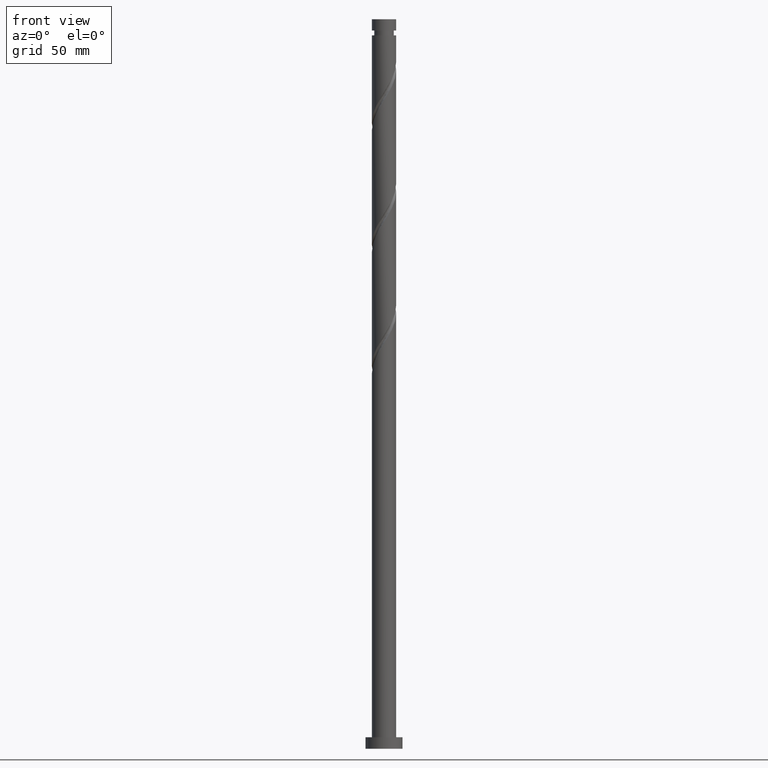
[diagram: clean part render]
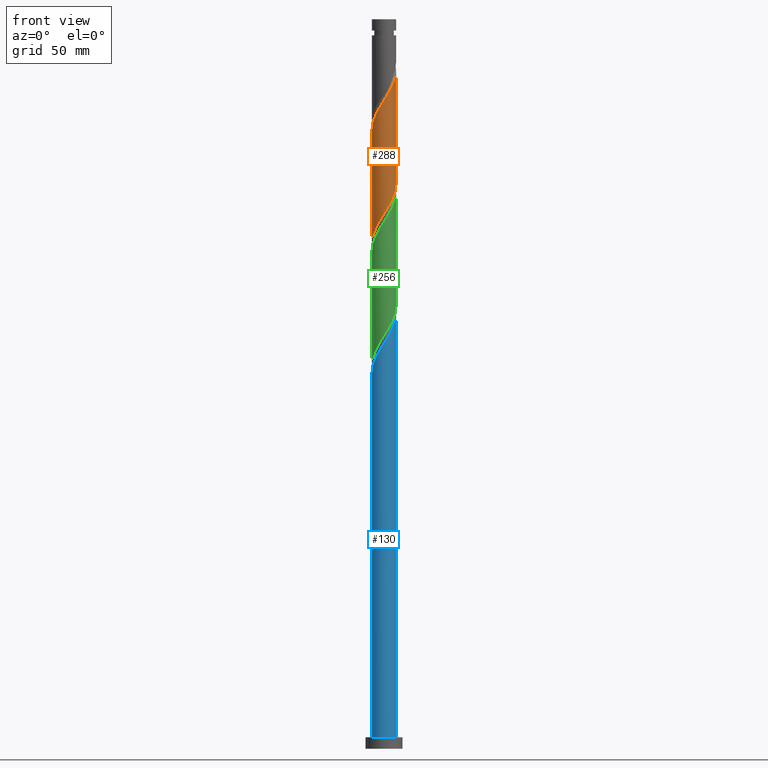
[diagram: same view with three faces highlighted in distinct colors, each labeled with its STEP entity id]
A machine part, front view with three faces highlighted in distinct colors.
Their STEP definitions:

[orange] entity #288 — the highlighted cylindrical surface (edge-blend (fillet) strip) has radius 5.25 mm, axis along (-0, -0, -1).
#23 = DIRECTION ( 'NONE',  ( -0.000000000000000000, -0.000000000000000000, -1.000000000000000000 ) ) ;
#29 = EDGE_CURVE ( 'NONE', #1699, #625, #1405, .T. ) ;
#64 = CARTESIAN_POINT ( 'NONE',  ( -5.250000000000007994, 6.731523858208281792E-15, 266.9592842390801479 ) ) ;
#93 = CARTESIAN_POINT ( 'NONE',  ( 0.1263271292644582433, -5.248479918644234132, 231.1338013169862791 ) ) ;
#104 = CARTESIAN_POINT ( 'NONE',  ( 2.917669601085083109, -4.404499439377113745, 235.8213013169862222 ) ) ;
#112 = CARTESIAN_POINT ( 'NONE',  ( -5.088779138424103898, -1.291056497733397812, 219.8838013169861938 ) ) ;
#122 = CARTESIAN_POINT ( 'NONE',  ( 5.250000000000007994, -8.955464112915676280E-17, 293.2092842390802048 ) ) ;
#146 = CARTESIAN_POINT ( 'NONE',  ( -0.7176887917048032639, -5.234246269600876467, 278.9463013169862506 ) ) ;
#165 = VERTEX_POINT ( 'NONE', #1917 ) ;
#223 = CARTESIAN_POINT ( 'NONE',  ( -5.248479918644234132, -0.1263271292644584931, 218.0088013169862222 ) ) ;
#247 = CARTESIAN_POINT ( 'NONE',  ( 4.539770163101061407, -2.702387477544005989, 239.5713013169863075 ) ) ;
#254 =( BOUNDED_CURVE ( )  B_SPLINE_CURVE ( 2, ( #1151, #724, #1174, #1031, #1605, #1288, #994, #889, #1765, #1470, #549, #1022, #1135, #146, #897, #1613, #870, #862, #742, #1330, #1924, #1735, #1624, #404, #1779, #1144, #734, #1004, #1486, #300, #122 ),
 .UNSPECIFIED., .F., .T. ) 
 B_SPLINE_CURVE_WITH_KNOTS ( ( 3, 2, 2, 2, 2, 2, 2, 2, 2, 2, 2, 2, 2, 2, 2, 3 ),
 ( 0.5545303401299220836, 0.5625000000000000000, 0.5714285714285713969, 0.5803571428571427937, 0.5892857142857143016, 0.5982142857142856984, 0.6071428571428572063, 0.6160714285714286031, 0.6250000000000000000, 0.6339285714285713969, 0.6428571428571427937, 0.6517857142857143016, 0.6607142857142856984, 0.6696428571428572063, 0.6785714285714286031, 0.6795303401299219725 ),
 .UNSPECIFIED. ) 
 CURVE ( )  GEOMETRIC_REPRESENTATION_ITEM ( )  RATIONAL_B_SPLINE_CURVE ( ( 0.9079949616362053000, 0.9039886423360684597, 0.9090909090909352619, 0.9033747362666101344, 0.9090909090909352619, 0.9033747362666101344, 0.9090909090909352619, 0.9033747362666101344, 0.9090909090909352619, 0.9033747362666101344, 0.9090909090909352619, 0.9033747362666101344, 0.9090909090909352619, 0.9033747362666101344, 0.9090909090909352619, 0.9033747362666101344, 0.9090909090909352619, 0.9033747362666101344, 0.9090909090909352619, 0.9033747362666101344, 0.9090909090909352619, 0.9033747362666101344, 0.9090909090909352619, 0.9033747362666101344, 0.9090909090909352619, 0.9033747362666101344, 0.9090909090909352619, 0.9033747362666101344, 0.9090909090909352619, 0.9084770030214770475, 0.9079949616362054110 ) ) 
 REPRESENTATION_ITEM ( '' )  );
#288 = ADVANCED_FACE ( 'NONE', ( #475 ), #1374, .T. ) ;
#294 = VECTOR ( 'NONE', #827, 1000.000000000000000 ) ;
#300 = CARTESIAN_POINT ( 'NONE',  ( 5.250000000000008882, -0.06317271012355664406, 293.1089215508551433 ) ) ;
#331 = LINE ( 'NONE', #786, #872 ) ;
#342 = EDGE_LOOP ( 'NONE', ( #1256, #1812, #376, #1505 ) ) ;
#346 = EDGE_CURVE ( 'NONE', #787, #165, #331, .T. ) ;
#359 = CARTESIAN_POINT ( 'NONE',  ( -3.644826878028541550, -3.824610861482511837, 224.5713013169862791 ) ) ;
#366 = CARTESIAN_POINT ( 'NONE',  ( -5.249999999999998224, 2.850822742611512929E-15, 217.8083183948922965 ) ) ;
#376 = ORIENTED_EDGE ( 'NONE', *, *, #346, .T. ) ;
#383 =( BOUNDED_CURVE ( )  B_SPLINE_CURVE ( 2, ( #1547, #1428, #1715, #1421, #504, #247, #1846, #842, #1437, #104, #826, #821, #666, #1687, #93, #1562, #696, #1278, #1880, #1091, #1126, #359, #392, #1697, #1271, #1554, #112, #982, #223, #951, #366 ),
 .UNSPECIFIED., .F., .T. ) 
 B_SPLINE_CURVE_WITH_KNOTS ( ( 3, 2, 2, 2, 2, 2, 2, 2, 2, 2, 2, 2, 2, 2, 2, 3 ),
 ( 0.5545303401299221946, 0.5625000000000000000, 0.5714285714285713969, 0.5803571428571429047, 0.5892857142857143016, 0.5982142857142856984, 0.6071428571428570953, 0.6160714285714286031, 0.6250000000000000000, 0.6339285714285713969, 0.6428571428571429047, 0.6517857142857143016, 0.6607142857142856984, 0.6696428571428570953, 0.6785714285714286031, 0.6795303401299220836 ),
 .UNSPECIFIED. ) 
 CURVE ( )  GEOMETRIC_REPRESENTATION_ITEM ( )  RATIONAL_B_SPLINE_CURVE ( ( 0.9079949616361979725, 0.9039886423360613543, 0.9090909090909280454, 0.9033747362666029179, 0.9090909090909280454, 0.9033747362666029179, 0.9090909090909280454, 0.9033747362666029179, 0.9090909090909280454, 0.9033747362666029179, 0.9090909090909280454, 0.9033747362666029179, 0.9090909090909280454, 0.9033747362666029179, 0.9090909090909280454, 0.9033747362666029179, 0.9090909090909280454, 0.9033747362666029179, 0.9090909090909280454, 0.9033747362666029179, 0.9090909090909280454, 0.9033747362666029179, 0.9090909090909280454, 0.9033747362666029179, 0.9090909090909280454, 0.9033747362666029179, 0.9090909090909280454, 0.9033747362666029179, 0.9090909090909280454, 0.9084770030214698311, 0.9079949616361981946 ) ) 
 REPRESENTATION_ITEM ( '' )  );
#392 = CARTESIAN_POINT ( 'NONE',  ( -4.024663158702826316, -3.371140231283797029, 223.6338013169862222 ) ) ;
#404 = CARTESIAN_POINT ( 'NONE',  ( 4.404499439377119963, -2.917669601085090214, 288.3213013169862506 ) ) ;
#475 = FACE_OUTER_BOUND ( 'NONE', #342, .T. ) ;
#485 = EDGE_CURVE ( 'NONE', #625, #165, #383, .T. ) ;
#504 = CARTESIAN_POINT ( 'NONE',  ( 4.783528297706726384, -2.163413281146016054, 240.5088013169862222 ) ) ;
#549 = CARTESIAN_POINT ( 'NONE',  ( -2.391046902423545895, -4.673905723312233640, 276.1338013169863643 ) ) ;
#625 = VERTEX_POINT ( 'NONE', #1476 ) ;
#666 = CARTESIAN_POINT ( 'NONE',  ( 1.291056497733397368, -5.088779138424103898, 233.0088013169862222 ) ) ;
#685 = CARTESIAN_POINT ( 'NONE',  ( 5.250000000000000000, 6.429395695523604153E-16, 315.0000000000000000 ) ) ;
#696 = CARTESIAN_POINT ( 'NONE',  ( -1.044736808961954200, -5.144999999999996909, 229.2588013169862506 ) ) ;
#724 = CARTESIAN_POINT ( 'NONE',  ( -5.250000000000007994, -0.5276448530110887658, 267.7975553180438055 ) ) ;
#734 = CARTESIAN_POINT ( 'NONE',  ( 5.088779138424111892, -1.291056497733402475, 291.1338013169862506 ) ) ;
#742 = CARTESIAN_POINT ( 'NONE',  ( 2.163413281146017830, -4.783528297706736154, 283.6338013169861938 ) ) ;
#759 = EDGE_CURVE ( 'NONE', #787, #1699, #254, .T. ) ;
#786 = CARTESIAN_POINT ( 'NONE',  ( -5.250000000000000000, 0.000000000000000000, 315.0000000000000000 ) ) ;
#787 = VERTEX_POINT ( 'NONE', #64 ) ;
#821 = CARTESIAN_POINT ( 'NONE',  ( 1.864424203761996468, -4.943312007247341100, 233.9463013169863075 ) ) ;
#826 = CARTESIAN_POINT ( 'NONE',  ( 2.391046902423538345, -4.673905723312225646, 234.8838013169861938 ) ) ;
#827 = DIRECTION ( 'NONE',  ( -0.000000000000000000, -0.000000000000000000, -1.000000000000000000 ) ) ;
#842 = CARTESIAN_POINT ( 'NONE',  ( 3.824610861482511837, -3.644826878028541550, 237.6963013169862791 ) ) ;
#862 = CARTESIAN_POINT ( 'NONE',  ( 1.624439084748026119, -5.027286432312405573, 282.6963013169862506 ) ) ;
#870 = CARTESIAN_POINT ( 'NONE',  ( 1.044736808961953978, -5.145000000000008455, 281.7588013169861370 ) ) ;
#872 = VECTOR ( 'NONE', #23, 1000.000000000000000 ) ;
#889 = CARTESIAN_POINT ( 'NONE',  ( -3.824610861482520274, -3.644826878028545991, 273.3213013169862506 ) ) ;
#897 = CARTESIAN_POINT ( 'NONE',  ( -0.1263271292644604360, -5.248479918644243902, 279.8838013169862506 ) ) ;
#951 = CARTESIAN_POINT ( 'NONE',  ( -5.249999999999998224, -0.06317271012354704063, 217.9086810831173580 ) ) ;
#982 = CARTESIAN_POINT ( 'NONE',  ( -5.234246269600866697, -0.7176887917048000443, 218.9463013169863075 ) ) ;
#994 = CARTESIAN_POINT ( 'NONE',  ( -4.182190512291795059, -3.173607177786278655, 272.3838013169863075 ) ) ;
#1004 = CARTESIAN_POINT ( 'NONE',  ( 5.234246269600876467, -0.7176887917048038190, 292.0713013169861938 ) ) ;
#1022 = CARTESIAN_POINT ( 'NONE',  ( -1.864424203762001131, -4.943312007247349982, 277.0713013169863075 ) ) ;
#1031 = CARTESIAN_POINT ( 'NONE',  ( -5.027286432312403797, -1.624439084748026341, 269.5713013169862506 ) ) ;
#1091 = CARTESIAN_POINT ( 'NONE',  ( -2.702387477544005989, -4.539770163101061407, 226.4463013169862506 ) ) ;
#1126 = CARTESIAN_POINT ( 'NONE',  ( -3.173607177786274214, -4.182190512291786177, 225.5088013169862791 ) ) ;
#1135 = CARTESIAN_POINT ( 'NONE',  ( -1.291056497733402475, -5.088779138424111892, 278.0088013169862506 ) ) ;
#1144 = CARTESIAN_POINT ( 'NONE',  ( 4.943312007247349982, -1.864424203762001131, 290.1963013169862506 ) ) ;
#1151 = CARTESIAN_POINT ( 'NONE',  ( -5.250000000000007994, 6.731523858208281792E-15, 266.9592842390801479 ) ) ;
#1174 = CARTESIAN_POINT ( 'NONE',  ( -5.145000000000008455, -1.044736808961954422, 268.6338013169863075 ) ) ;
#1256 = ORIENTED_EDGE ( 'NONE', *, *, #29, .F. ) ;
#1271 = CARTESIAN_POINT ( 'NONE',  ( -4.673905723312225646, -2.391046902423538789, 221.7588013169862791 ) ) ;
#1278 = CARTESIAN_POINT ( 'NONE',  ( -1.624439084748025675, -5.027286432312394915, 228.3213013169862791 ) ) ;
#1288 = CARTESIAN_POINT ( 'NONE',  ( -4.539770163101068512, -2.702387477544009986, 271.4463013169861938 ) ) ;
#1295 = CARTESIAN_POINT ( 'NONE',  ( 5.250000000000007994, -8.955464112915676280E-17, 293.2092842390802048 ) ) ;
#1330 = CARTESIAN_POINT ( 'NONE',  ( 2.702387477544009542, -4.539770163101068512, 284.5713013169862506 ) ) ;
#1374 = CYLINDRICAL_SURFACE ( 'NONE', #1700, 5.250000000000000000 ) ;
#1405 = LINE ( 'NONE', #685, #294 ) ;
#1421 = CARTESIAN_POINT ( 'NONE',  ( 5.027286432312394915, -1.624439084748025897, 241.4463013169862506 ) ) ;
#1428 = CARTESIAN_POINT ( 'NONE',  ( 5.249999999999996447, -0.5276448530110972035, 243.2200473159286389 ) ) ;
#1437 = CARTESIAN_POINT ( 'NONE',  ( 3.371140231283796584, -4.024663158702826316, 236.7588013169862222 ) ) ;
#1470 = CARTESIAN_POINT ( 'NONE',  ( -2.917669601085089326, -4.404499439377119963, 275.1963013169862506 ) ) ;
#1476 = CARTESIAN_POINT ( 'NONE',  ( 5.249999999999997335, -3.320984608539589435E-15, 244.0583183948922681 ) ) ;
#1486 = CARTESIAN_POINT ( 'NONE',  ( 5.248479918644243902, -0.1263271292644609078, 293.0088013169863075 ) ) ;
#1505 = ORIENTED_EDGE ( 'NONE', *, *, #485, .F. ) ;
#1539 = CARTESIAN_POINT ( 'NONE',  ( 0.000000000000000000, 0.000000000000000000, 315.0000000000000000 ) ) ;
#1547 = CARTESIAN_POINT ( 'NONE',  ( 5.249999999999997335, -3.320984608539589435E-15, 244.0583183948922681 ) ) ;
#1554 = CARTESIAN_POINT ( 'NONE',  ( -4.943312007247341100, -1.864424203761996468, 220.8213013169862791 ) ) ;
#1562 = CARTESIAN_POINT ( 'NONE',  ( -0.4650345331758833356, -5.262713567687602456, 230.1963013169862222 ) ) ;
#1605 = CARTESIAN_POINT ( 'NONE',  ( -4.783528297706736154, -2.163413281146018274, 270.5088013169862506 ) ) ;
#1613 = CARTESIAN_POINT ( 'NONE',  ( 0.4650345331758820033, -5.262713567687611338, 280.8213013169862506 ) ) ;
#1624 = CARTESIAN_POINT ( 'NONE',  ( 4.024663158702830756, -3.371140231283805466, 287.3838013169861938 ) ) ;
#1687 = CARTESIAN_POINT ( 'NONE',  ( 0.7176887917047999332, -5.234246269600866697, 232.0713013169862222 ) ) ;
#1697 = CARTESIAN_POINT ( 'NONE',  ( -4.404499439377112857, -2.917669601085083109, 222.6963013169862222 ) ) ;
#1699 = VERTEX_POINT ( 'NONE', #1295 ) ;
#1700 = AXIS2_PLACEMENT_3D ( 'NONE', #1539, #1809, #1835 ) ;
#1715 = CARTESIAN_POINT ( 'NONE',  ( 5.144999999999996909, -1.044736808961954644, 242.3838013169862222 ) ) ;
#1735 = CARTESIAN_POINT ( 'NONE',  ( 3.644826878028545991, -3.824610861482520274, 286.4463013169862506 ) ) ;
#1765 = CARTESIAN_POINT ( 'NONE',  ( -3.371140231283805466, -4.024663158702832533, 274.2588013169861938 ) ) ;
#1779 = CARTESIAN_POINT ( 'NONE',  ( 4.673905723312233640, -2.391046902423545895, 289.2588013169863075 ) ) ;
#1809 = DIRECTION ( 'NONE',  ( -0.000000000000000000, -0.000000000000000000, -1.000000000000000000 ) ) ;
#1812 = ORIENTED_EDGE ( 'NONE', *, *, #759, .F. ) ;
#1835 = DIRECTION ( 'NONE',  ( -1.000000000000000000, 0.000000000000000000, 0.000000000000000000 ) ) ;
#1846 = CARTESIAN_POINT ( 'NONE',  ( 4.182190512291786177, -3.173607177786274214, 238.6338013169862222 ) ) ;
#1880 = CARTESIAN_POINT ( 'NONE',  ( -2.163413281146016054, -4.783528297706726384, 227.3838013169862222 ) ) ;
#1917 = CARTESIAN_POINT ( 'NONE',  ( -5.249999999999998224, 2.850822742611512929E-15, 217.8083183948922965 ) ) ;
#1924 = CARTESIAN_POINT ( 'NONE',  ( 3.173607177786278211, -4.182190512291795059, 285.5088013169862506 ) ) ;

[blue] entity #130 — the highlighted cylindrical surface (edge-blend (fillet) strip) has radius 5.25 mm, axis along (-0, -0, -1).
#15 = CARTESIAN_POINT ( 'NONE',  ( -5.250000000000007994, -1.388096937501929922E-15, 161.9592842390802048 ) ) ;
#123 = CARTESIAN_POINT ( 'NONE',  ( -0.7176887917048032639, -5.234246269600876467, 173.9463013169862791 ) ) ;
#130 = ADVANCED_FACE ( 'NONE', ( #568 ), #1598, .T. ) ;
#132 = CARTESIAN_POINT ( 'NONE',  ( 0.4650345331758820033, -5.262713567687611338, 175.8213013169862791 ) ) ;
#139 = CARTESIAN_POINT ( 'NONE',  ( 0.000000000000000000, 0.000000000000000000, 5.000000000000000000 ) ) ;
#140 = CARTESIAN_POINT ( 'NONE',  ( 1.624439084748026119, -5.027286432312405573, 177.6963013169863075 ) ) ;
#149 = CARTESIAN_POINT ( 'NONE',  ( -5.250000000000007994, -1.388096937501929922E-15, 161.9592842390802332 ) ) ;
#213 = EDGE_CURVE ( 'NONE', #1874, #1365, #731, .T. ) ;
#216 = ORIENTED_EDGE ( 'NONE', *, *, #213, .F. ) ;
#283 = CARTESIAN_POINT ( 'NONE',  ( -5.027286432312403797, -1.624439084748026341, 164.5713013169863075 ) ) ;
#301 = CARTESIAN_POINT ( 'NONE',  ( 5.088779138424111892, -1.291056497733402475, 186.1338013169862222 ) ) ;
#306 = LINE ( 'NONE', #688, #1729 ) ;
#314 = DIRECTION ( 'NONE',  ( 1.000000000000000000, 0.000000000000000000, 0.000000000000000000 ) ) ;
#406 = CARTESIAN_POINT ( 'NONE',  ( 5.248479918644243902, -0.1263271292644609078, 188.0088013169863075 ) ) ;
#448 = CARTESIAN_POINT ( 'NONE',  ( 4.673905723312233640, -2.391046902423545895, 184.2588013169862506 ) ) ;
#458 = ORIENTED_EDGE ( 'NONE', *, *, #1744, .F. ) ;
#523 = CARTESIAN_POINT ( 'NONE',  ( -5.250000000000000000, 0.000000000000000000, 5.000000000000000000 ) ) ;
#568 = FACE_OUTER_BOUND ( 'NONE', #1859, .T. ) ;
#579 = CARTESIAN_POINT ( 'NONE',  ( -3.371140231283805466, -4.024663158702832533, 169.2588013169862222 ) ) ;
#591 = CARTESIAN_POINT ( 'NONE',  ( -5.250000000000007994, -0.5276448530110925406, 162.7975553180438339 ) ) ;
#600 = CARTESIAN_POINT ( 'NONE',  ( 2.702387477544009542, -4.539770163101068512, 179.5713013169862791 ) ) ;
#603 = ORIENTED_EDGE ( 'NONE', *, *, #1620, .T. ) ;
#616 = AXIS2_PLACEMENT_3D ( 'NONE', #139, #1645, #314 ) ;
#688 = CARTESIAN_POINT ( 'NONE',  ( -5.250000000000000000, 0.000000000000000000, 315.0000000000000000 ) ) ;
#702 = CARTESIAN_POINT ( 'NONE',  ( 5.250000000000000000, 6.429395695523604153E-16, 315.0000000000000000 ) ) ;
#725 = CARTESIAN_POINT ( 'NONE',  ( 1.044736808961953978, -5.145000000000008455, 176.7588013169862506 ) ) ;
#731 =( BOUNDED_CURVE ( )  B_SPLINE_CURVE ( 2, ( #149, #591, #736, #283, #864, #1145, #873, #1462, #579, #1014, #1187, #1927, #1782, #123, #757, #132, #725, #140, #1590, #600, #1306, #1615, #1152, #1472, #448, #1033, #301, #899, #406, #1607, #1322 ),
 .UNSPECIFIED., .F., .T. ) 
 B_SPLINE_CURVE_WITH_KNOTS ( ( 3, 2, 2, 2, 2, 2, 2, 2, 2, 2, 2, 2, 2, 2, 2, 3 ),
 ( 0.05453034012992213908, 0.06250000000000000000, 0.07142857142857139685, 0.08035714285714290472, 0.08928571428571430157, 0.09821428571428569843, 0.1071428571428570953, 0.1160714285714286031, 0.1250000000000000000, 0.1339285714285713969, 0.1428571428571429047, 0.1517857142857143016, 0.1607142857142856984, 0.1696428571428570953, 0.1785714285714286031, 0.1795303401299221113 ),
 .UNSPECIFIED. ) 
 CURVE ( )  GEOMETRIC_REPRESENTATION_ITEM ( )  RATIONAL_B_SPLINE_CURVE ( ( 0.9079949616362051890, 0.9039886423360684597, 0.9090909090909352619, 0.9033747362666101344, 0.9090909090909352619, 0.9033747362666101344, 0.9090909090909352619, 0.9033747362666101344, 0.9090909090909352619, 0.9033747362666101344, 0.9090909090909352619, 0.9033747362666101344, 0.9090909090909352619, 0.9033747362666101344, 0.9090909090909352619, 0.9033747362666101344, 0.9090909090909352619, 0.9033747362666101344, 0.9090909090909352619, 0.9033747362666101344, 0.9090909090909352619, 0.9033747362666101344, 0.9090909090909352619, 0.9033747362666101344, 0.9090909090909352619, 0.9033747362666101344, 0.9090909090909352619, 0.9033747362666101344, 0.9090909090909352619, 0.9084770030214770475, 0.9079949616362054110 ) ) 
 REPRESENTATION_ITEM ( '' )  );
#736 = CARTESIAN_POINT ( 'NONE',  ( -5.145000000000008455, -1.044736808961954422, 163.6338013169862506 ) ) ;
#748 = CIRCLE ( 'NONE', #616, 5.250000000000000000 ) ;
#757 = CARTESIAN_POINT ( 'NONE',  ( -0.1263271292644604360, -5.248479918644243902, 174.8838013169862506 ) ) ;
#800 = ORIENTED_EDGE ( 'NONE', *, *, #1873, .T. ) ;
#864 = CARTESIAN_POINT ( 'NONE',  ( -4.783528297706736154, -2.163413281146018274, 165.5088013169862506 ) ) ;
#873 = CARTESIAN_POINT ( 'NONE',  ( -4.182190512291795059, -3.173607177786278655, 167.3838013169862222 ) ) ;
#884 = DIRECTION ( 'NONE',  ( -1.000000000000000000, 0.000000000000000000, 0.000000000000000000 ) ) ;
#899 = CARTESIAN_POINT ( 'NONE',  ( 5.234246269600876467, -0.7176887917048038190, 187.0713013169863075 ) ) ;
#943 = DIRECTION ( 'NONE',  ( -0.000000000000000000, -0.000000000000000000, -1.000000000000000000 ) ) ;
#1014 = CARTESIAN_POINT ( 'NONE',  ( -2.917669601085089326, -4.404499439377119963, 170.1963013169862506 ) ) ;
#1024 = CARTESIAN_POINT ( 'NONE',  ( 0.000000000000000000, 0.000000000000000000, 315.0000000000000000 ) ) ;
#1033 = CARTESIAN_POINT ( 'NONE',  ( 4.943312007247349982, -1.864424203762001131, 185.1963013169862791 ) ) ;
#1061 = AXIS2_PLACEMENT_3D ( 'NONE', #1024, #1745, #884 ) ;
#1145 = CARTESIAN_POINT ( 'NONE',  ( -4.539770163101068512, -2.702387477544009986, 166.4463013169862506 ) ) ;
#1152 = CARTESIAN_POINT ( 'NONE',  ( 4.024663158702830756, -3.371140231283805466, 182.3838013169862506 ) ) ;
#1187 = CARTESIAN_POINT ( 'NONE',  ( -2.391046902423545895, -4.673905723312233640, 171.1338013169862791 ) ) ;
#1263 = VERTEX_POINT ( 'NONE', #1773 ) ;
#1274 = DIRECTION ( 'NONE',  ( -0.000000000000000000, -0.000000000000000000, -1.000000000000000000 ) ) ;
#1306 = CARTESIAN_POINT ( 'NONE',  ( 3.173607177786278211, -4.182190512291795059, 180.5088013169862791 ) ) ;
#1322 = CARTESIAN_POINT ( 'NONE',  ( 5.250000000000007994, 7.015113555117280410E-16, 188.2092842390802332 ) ) ;
#1365 = VERTEX_POINT ( 'NONE', #1679 ) ;
#1460 = VECTOR ( 'NONE', #943, 1000.000000000000000 ) ;
#1462 = CARTESIAN_POINT ( 'NONE',  ( -3.824610861482520274, -3.644826878028545991, 168.3213013169863075 ) ) ;
#1472 = CARTESIAN_POINT ( 'NONE',  ( 4.404499439377119963, -2.917669601085090214, 183.3213013169862506 ) ) ;
#1551 = LINE ( 'NONE', #702, #1460 ) ;
#1590 = CARTESIAN_POINT ( 'NONE',  ( 2.163413281146017830, -4.783528297706736154, 178.6338013169862506 ) ) ;
#1598 = CYLINDRICAL_SURFACE ( 'NONE', #1061, 5.250000000000000000 ) ;
#1607 = CARTESIAN_POINT ( 'NONE',  ( 5.250000000000008882, -0.06317271012354749860, 188.1089215508551149 ) ) ;
#1615 = CARTESIAN_POINT ( 'NONE',  ( 3.644826878028545991, -3.824610861482520274, 181.4463013169862791 ) ) ;
#1620 = EDGE_CURVE ( 'NONE', #1908, #1263, #748, .T. ) ;
#1645 = DIRECTION ( 'NONE',  ( 0.000000000000000000, 0.000000000000000000, 1.000000000000000000 ) ) ;
#1679 = CARTESIAN_POINT ( 'NONE',  ( 5.250000000000007994, 7.015113555117280410E-16, 188.2092842390802332 ) ) ;
#1729 = VECTOR ( 'NONE', #1274, 1000.000000000000000 ) ;
#1744 = EDGE_CURVE ( 'NONE', #1365, #1263, #1551, .T. ) ;
#1745 = DIRECTION ( 'NONE',  ( -0.000000000000000000, -0.000000000000000000, -1.000000000000000000 ) ) ;
#1773 = CARTESIAN_POINT ( 'NONE',  ( 5.250000000000000000, 6.429395695523604153E-16, 5.000000000000000000 ) ) ;
#1782 = CARTESIAN_POINT ( 'NONE',  ( -1.291056497733402475, -5.088779138424111892, 173.0088013169862791 ) ) ;
#1859 = EDGE_LOOP ( 'NONE', ( #458, #216, #800, #603 ) ) ;
#1873 = EDGE_CURVE ( 'NONE', #1874, #1908, #306, .T. ) ;
#1874 = VERTEX_POINT ( 'NONE', #15 ) ;
#1908 = VERTEX_POINT ( 'NONE', #523 ) ;
#1927 = CARTESIAN_POINT ( 'NONE',  ( -1.864424203762001131, -4.943312007247349982, 172.0713013169862791 ) ) ;

[green] entity #256 — the highlighted cylindrical surface (edge-blend (fillet) strip) has radius 5.25 mm, axis along (-0, -0, -1).
#47 = CARTESIAN_POINT ( 'NONE',  ( -4.024663158702826316, -3.371140231283797029, 171.1338013169862506 ) ) ;
#106 = VERTEX_POINT ( 'NONE', #715 ) ;
#131 = CARTESIAN_POINT ( 'NONE',  ( -3.824610861482520274, -3.644826878028545991, 220.8213013169862506 ) ) ;
#138 = CARTESIAN_POINT ( 'NONE',  ( -0.7176887917048032639, -5.234246269600876467, 226.4463013169862791 ) ) ;
#160 = CARTESIAN_POINT ( 'NONE',  ( 3.824610861482511837, -3.644826878028541550, 185.1963013169862506 ) ) ;
#203 = CYLINDRICAL_SURFACE ( 'NONE', #514, 5.250000000000000000 ) ;
#214 = DIRECTION ( 'NONE',  ( -1.000000000000000000, 0.000000000000000000, 0.000000000000000000 ) ) ;
#246 = CARTESIAN_POINT ( 'NONE',  ( -5.248479918644234132, -0.1263271292644584931, 165.5088013169862222 ) ) ;
#256 = ADVANCED_FACE ( 'NONE', ( #1228 ), #203, .T. ) ;
#257 = VERTEX_POINT ( 'NONE', #481 ) ;
#281 = CARTESIAN_POINT ( 'NONE',  ( -1.291056497733402475, -5.088779138424111892, 225.5088013169862791 ) ) ;
#282 = CARTESIAN_POINT ( 'NONE',  ( 3.371140231283796584, -4.024663158702826316, 184.2588013169862222 ) ) ;
#291 = DIRECTION ( 'NONE',  ( -0.000000000000000000, -0.000000000000000000, -1.000000000000000000 ) ) ;
#317 = DIRECTION ( 'NONE',  ( -0.000000000000000000, -0.000000000000000000, -1.000000000000000000 ) ) ;
#322 = CARTESIAN_POINT ( 'NONE',  ( 5.249999999999998224, -0.5276448530110898760, 190.7200473159287242 ) ) ;
#353 = CARTESIAN_POINT ( 'NONE',  ( 5.088779138424111892, -1.291056497733402475, 238.6338013169862506 ) ) ;
#389 = EDGE_CURVE ( 'NONE', #1533, #835, #457, .T. ) ;
#393 = ORIENTED_EDGE ( 'NONE', *, *, #783, .F. ) ;
#414 = CARTESIAN_POINT ( 'NONE',  ( -5.027286432312403797, -1.624439084748026341, 217.0713013169862506 ) ) ;
#422 = CARTESIAN_POINT ( 'NONE',  ( -2.391046902423545895, -4.673905723312233640, 223.6338013169862506 ) ) ;
#457 = LINE ( 'NONE', #1531, #1101 ) ;
#481 = CARTESIAN_POINT ( 'NONE',  ( 5.249999999999997335, -3.320984608539589435E-15, 191.5583183948923249 ) ) ;
#513 =( BOUNDED_CURVE ( )  B_SPLINE_CURVE ( 2, ( #589, #576, #1743, #414, #1597, #1305, #1459, #131, #706, #1905, #422, #1013, #281, #138, #1681, #1408, #813, #1258, #1235, #1793, #1065, #1185, #1340, #661, #954, #1549, #353, #947, #1842, #937, #930 ),
 .UNSPECIFIED., .F., .T. ) 
 B_SPLINE_CURVE_WITH_KNOTS ( ( 3, 2, 2, 2, 2, 2, 2, 2, 2, 2, 2, 2, 2, 2, 2, 3 ),
 ( 0.3045303401299221946, 0.3125000000000000000, 0.3214285714285713969, 0.3303571428571429047, 0.3392857142857143016, 0.3482142857142856984, 0.3571428571428570953, 0.3660714285714286031, 0.3750000000000000000, 0.3839285714285713969, 0.3928571428571429047, 0.4017857142857143016, 0.4107142857142856984, 0.4196428571428570953, 0.4285714285714286031, 0.4295303401299220836 ),
 .UNSPECIFIED. ) 
 CURVE ( )  GEOMETRIC_REPRESENTATION_ITEM ( )  RATIONAL_B_SPLINE_CURVE ( ( 0.9079949616362051890, 0.9039886423360685708, 0.9090909090909352619, 0.9033747362666101344, 0.9090909090909352619, 0.9033747362666101344, 0.9090909090909352619, 0.9033747362666101344, 0.9090909090909352619, 0.9033747362666101344, 0.9090909090909352619, 0.9033747362666101344, 0.9090909090909352619, 0.9033747362666101344, 0.9090909090909352619, 0.9033747362666101344, 0.9090909090909352619, 0.9033747362666101344, 0.9090909090909352619, 0.9033747362666101344, 0.9090909090909352619, 0.9033747362666101344, 0.9090909090909352619, 0.9033747362666101344, 0.9090909090909352619, 0.9033747362666101344, 0.9090909090909352619, 0.9033747362666101344, 0.9090909090909352619, 0.9084770030214770475, 0.9079949616362053000 ) ) 
 REPRESENTATION_ITEM ( '' )  );
#514 = AXIS2_PLACEMENT_3D ( 'NONE', #1385, #909, #214 ) ;
#516 = CARTESIAN_POINT ( 'NONE',  ( -2.702387477544005989, -4.539770163101061407, 173.9463013169862506 ) ) ;
#524 = CARTESIAN_POINT ( 'NONE',  ( 0.1263271292644582433, -5.248479918644234132, 178.6338013169862222 ) ) ;
#576 = CARTESIAN_POINT ( 'NONE',  ( -5.250000000000007105, -0.5276448530110959823, 215.2975553180438339 ) ) ;
#578 = LINE ( 'NONE', #1023, #584 ) ;
#584 = VECTOR ( 'NONE', #291, 1000.000000000000000 ) ;
#589 = CARTESIAN_POINT ( 'NONE',  ( -5.250000000000007994, -1.388096937501929922E-15, 214.4592842390802048 ) ) ;
#634 = CARTESIAN_POINT ( 'NONE',  ( -4.404499439377112857, -2.917669601085083109, 170.1963013169862506 ) ) ;
#653 = CARTESIAN_POINT ( 'NONE',  ( 2.917669601085083109, -4.404499439377113745, 183.3213013169862222 ) ) ;
#661 = CARTESIAN_POINT ( 'NONE',  ( 4.404499439377119963, -2.917669601085090214, 235.8213013169862222 ) ) ;
#671 = CARTESIAN_POINT ( 'NONE',  ( -5.249999999999998224, 2.850822742611512929E-15, 165.3083183948922397 ) ) ;
#706 = CARTESIAN_POINT ( 'NONE',  ( -3.371140231283805466, -4.024663158702832533, 221.7588013169862222 ) ) ;
#713 = CARTESIAN_POINT ( 'NONE',  ( -4.943312007247341100, -1.864424203761996468, 168.3213013169863075 ) ) ;
#715 = CARTESIAN_POINT ( 'NONE',  ( 5.250000000000007994, 7.015113555117280410E-16, 240.7092842390802332 ) ) ;
#776 = CARTESIAN_POINT ( 'NONE',  ( 5.027286432312394915, -1.624439084748025897, 188.9463013169862222 ) ) ;
#783 = EDGE_CURVE ( 'NONE', #1533, #106, #513, .T. ) ;
#785 = CARTESIAN_POINT ( 'NONE',  ( -2.163413281146016054, -4.783528297706726384, 174.8838013169862791 ) ) ;
#813 = CARTESIAN_POINT ( 'NONE',  ( 1.044736808961953978, -5.145000000000008455, 229.2588013169862506 ) ) ;
#818 = CARTESIAN_POINT ( 'NONE',  ( -0.4650345331758833356, -5.262713567687602456, 177.6963013169862791 ) ) ;
#833 = CARTESIAN_POINT ( 'NONE',  ( -5.249999999999998224, -0.06317271012353239956, 165.4086810831173580 ) ) ;
#835 = VERTEX_POINT ( 'NONE', #671 ) ;
#898 = CARTESIAN_POINT ( 'NONE',  ( 5.144999999999996909, -1.044736808961954644, 189.8838013169862506 ) ) ;
#909 = DIRECTION ( 'NONE',  ( -0.000000000000000000, -0.000000000000000000, -1.000000000000000000 ) ) ;
#925 = ORIENTED_EDGE ( 'NONE', *, *, #1491, .F. ) ;
#930 = CARTESIAN_POINT ( 'NONE',  ( 5.250000000000007994, 7.015113555117280410E-16, 240.7092842390802332 ) ) ;
#937 = CARTESIAN_POINT ( 'NONE',  ( 5.250000000000008882, -0.06317271012354931659, 240.6089215508550865 ) ) ;
#947 = CARTESIAN_POINT ( 'NONE',  ( 5.234246269600876467, -0.7176887917048038190, 239.5713013169862222 ) ) ;
#954 = CARTESIAN_POINT ( 'NONE',  ( 4.673905723312233640, -2.391046902423545895, 236.7588013169862506 ) ) ;
#964 = CARTESIAN_POINT ( 'NONE',  ( -5.234246269600866697, -0.7176887917048000443, 166.4463013169862506 ) ) ;
#1013 = CARTESIAN_POINT ( 'NONE',  ( -1.864424203762001131, -4.943312007247349982, 224.5713013169862506 ) ) ;
#1023 = CARTESIAN_POINT ( 'NONE',  ( 5.250000000000000000, 6.429395695523604153E-16, 315.0000000000000000 ) ) ;
#1032 = CARTESIAN_POINT ( 'NONE',  ( 5.249999999999997335, -3.320984608539589435E-15, 191.5583183948923249 ) ) ;
#1049 = CARTESIAN_POINT ( 'NONE',  ( -5.250000000000007994, -1.388096937501929922E-15, 214.4592842390802048 ) ) ;
#1058 = CARTESIAN_POINT ( 'NONE',  ( 4.182190512291786177, -3.173607177786274214, 186.1338013169861654 ) ) ;
#1065 = CARTESIAN_POINT ( 'NONE',  ( 3.173607177786278211, -4.182190512291795059, 233.0088013169862506 ) ) ;
#1067 = CARTESIAN_POINT ( 'NONE',  ( 1.291056497733397368, -5.088779138424103898, 180.5088013169861654 ) ) ;
#1101 = VECTOR ( 'NONE', #317, 1000.000000000000000 ) ;
#1113 = CARTESIAN_POINT ( 'NONE',  ( -5.249999999999998224, 2.850822742611512929E-15, 165.3083183948922397 ) ) ;
#1185 = CARTESIAN_POINT ( 'NONE',  ( 3.644826878028545991, -3.824610861482520274, 233.9463013169862791 ) ) ;
#1226 = CARTESIAN_POINT ( 'NONE',  ( 2.391046902423538345, -4.673905723312225646, 182.3838013169862222 ) ) ;
#1228 = FACE_OUTER_BOUND ( 'NONE', #1387, .T. ) ;
#1235 = CARTESIAN_POINT ( 'NONE',  ( 2.163413281146017830, -4.783528297706736154, 231.1338013169862222 ) ) ;
#1239 = CARTESIAN_POINT ( 'NONE',  ( 0.7176887917047999332, -5.234246269600866697, 179.5713013169862791 ) ) ;
#1251 = CARTESIAN_POINT ( 'NONE',  ( -1.624439084748025675, -5.027286432312394915, 175.8213013169862791 ) ) ;
#1258 = CARTESIAN_POINT ( 'NONE',  ( 1.624439084748026119, -5.027286432312405573, 230.1963013169862791 ) ) ;
#1304 = CARTESIAN_POINT ( 'NONE',  ( -4.673905723312225646, -2.391046902423538789, 169.2588013169862791 ) ) ;
#1305 = CARTESIAN_POINT ( 'NONE',  ( -4.539770163101068512, -2.702387477544009986, 218.9463013169862506 ) ) ;
#1340 = CARTESIAN_POINT ( 'NONE',  ( 4.024663158702830756, -3.371140231283805466, 234.8838013169862791 ) ) ;
#1373 = CARTESIAN_POINT ( 'NONE',  ( -3.644826878028541550, -3.824610861482511837, 172.0713013169863075 ) ) ;
#1377 = ORIENTED_EDGE ( 'NONE', *, *, #389, .T. ) ;
#1376 =( BOUNDED_CURVE ( )  B_SPLINE_CURVE ( 2, ( #1032, #322, #898, #776, #1488, #1818, #1058, #160, #282, #653, #1226, #1834, #1067, #1239, #524, #818, #1686, #1251, #785, #516, #1412, #1373, #47, #634, #1304, #713, #1457, #964, #246, #833, #1113 ),
 .UNSPECIFIED., .F., .T. ) 
 B_SPLINE_CURVE_WITH_KNOTS ( ( 3, 2, 2, 2, 2, 2, 2, 2, 2, 2, 2, 2, 2, 2, 2, 3 ),
 ( 0.8045303401299220836, 0.8125000000000000000, 0.8214285714285713969, 0.8303571428571429047, 0.8392857142857143016, 0.8482142857142856984, 0.8571428571428570953, 0.8660714285714286031, 0.8750000000000000000, 0.8839285714285713969, 0.8928571428571429047, 0.9017857142857143016, 0.9107142857142856984, 0.9196428571428570953, 0.9285714285714286031, 0.9295303401299223056 ),
 .UNSPECIFIED. ) 
 CURVE ( )  GEOMETRIC_REPRESENTATION_ITEM ( )  RATIONAL_B_SPLINE_CURVE ( ( 0.9079949616361981946, 0.9039886423360612433, 0.9090909090909280454, 0.9033747362666029179, 0.9090909090909280454, 0.9033747362666029179, 0.9090909090909280454, 0.9033747362666029179, 0.9090909090909280454, 0.9033747362666029179, 0.9090909090909280454, 0.9033747362666029179, 0.9090909090909280454, 0.9033747362666029179, 0.9090909090909280454, 0.9033747362666029179, 0.9090909090909280454, 0.9033747362666029179, 0.9090909090909280454, 0.9033747362666029179, 0.9090909090909280454, 0.9033747362666029179, 0.9090909090909280454, 0.9033747362666029179, 0.9090909090909280454, 0.9033747362666029179, 0.9090909090909280454, 0.9033747362666029179, 0.9090909090909280454, 0.9084770030214697201, 0.9079949616361979725 ) ) 
 REPRESENTATION_ITEM ( '' )  );
#1385 = CARTESIAN_POINT ( 'NONE',  ( 0.000000000000000000, 0.000000000000000000, 315.0000000000000000 ) ) ;
#1387 = EDGE_LOOP ( 'NONE', ( #925, #393, #1377, #1582 ) ) ;
#1408 = CARTESIAN_POINT ( 'NONE',  ( 0.4650345331758820033, -5.262713567687611338, 228.3213013169862791 ) ) ;
#1412 = CARTESIAN_POINT ( 'NONE',  ( -3.173607177786274214, -4.182190512291786177, 173.0088013169861938 ) ) ;
#1457 = CARTESIAN_POINT ( 'NONE',  ( -5.088779138424103898, -1.291056497733397812, 167.3838013169862506 ) ) ;
#1459 = CARTESIAN_POINT ( 'NONE',  ( -4.182190512291795059, -3.173607177786278655, 219.8838013169862506 ) ) ;
#1488 = CARTESIAN_POINT ( 'NONE',  ( 4.783528297706726384, -2.163413281146016054, 188.0088013169862222 ) ) ;
#1491 = EDGE_CURVE ( 'NONE', #106, #257, #578, .T. ) ;
#1531 = CARTESIAN_POINT ( 'NONE',  ( -5.250000000000000000, 0.000000000000000000, 315.0000000000000000 ) ) ;
#1533 = VERTEX_POINT ( 'NONE', #1049 ) ;
#1549 = CARTESIAN_POINT ( 'NONE',  ( 4.943312007247349982, -1.864424203762001131, 237.6963013169863075 ) ) ;
#1582 = ORIENTED_EDGE ( 'NONE', *, *, #1657, .F. ) ;
#1597 = CARTESIAN_POINT ( 'NONE',  ( -4.783528297706736154, -2.163413281146018274, 218.0088013169862506 ) ) ;
#1657 = EDGE_CURVE ( 'NONE', #257, #835, #1376, .T. ) ;
#1681 = CARTESIAN_POINT ( 'NONE',  ( -0.1263271292644604360, -5.248479918644243902, 227.3838013169862791 ) ) ;
#1686 = CARTESIAN_POINT ( 'NONE',  ( -1.044736808961954200, -5.144999999999996909, 176.7588013169861938 ) ) ;
#1743 = CARTESIAN_POINT ( 'NONE',  ( -5.145000000000008455, -1.044736808961954422, 216.1338013169862506 ) ) ;
#1793 = CARTESIAN_POINT ( 'NONE',  ( 2.702387477544009542, -4.539770163101068512, 232.0713013169862506 ) ) ;
#1818 = CARTESIAN_POINT ( 'NONE',  ( 4.539770163101061407, -2.702387477544005989, 187.0713013169862791 ) ) ;
#1834 = CARTESIAN_POINT ( 'NONE',  ( 1.864424203761996468, -4.943312007247341100, 181.4463013169862791 ) ) ;
#1842 = CARTESIAN_POINT ( 'NONE',  ( 5.248479918644243902, -0.1263271292644609078, 240.5088013169862506 ) ) ;
#1905 = CARTESIAN_POINT ( 'NONE',  ( -2.917669601085089326, -4.404499439377119963, 222.6963013169862791 ) ) ;